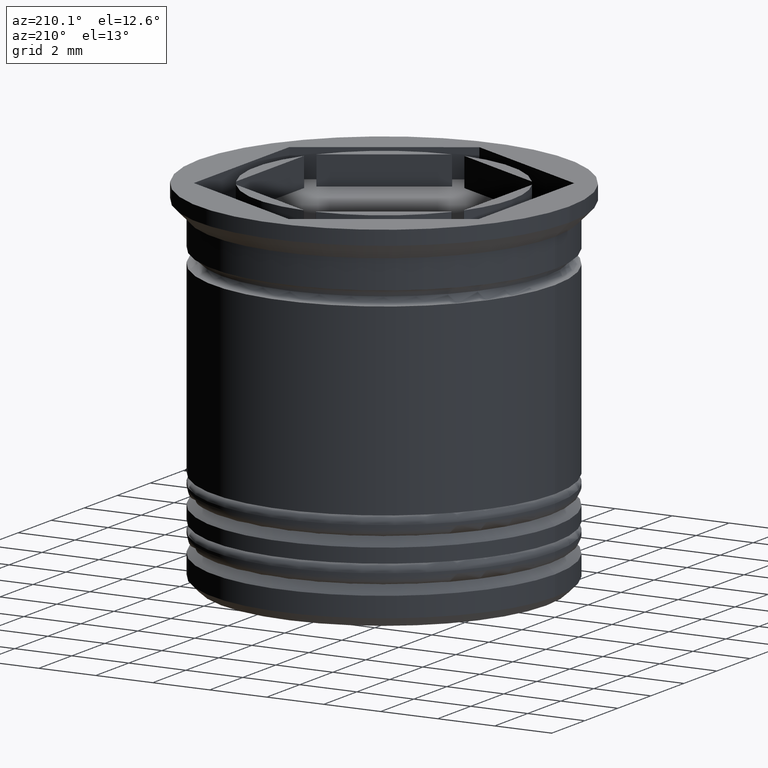
[diagram: clean part render]
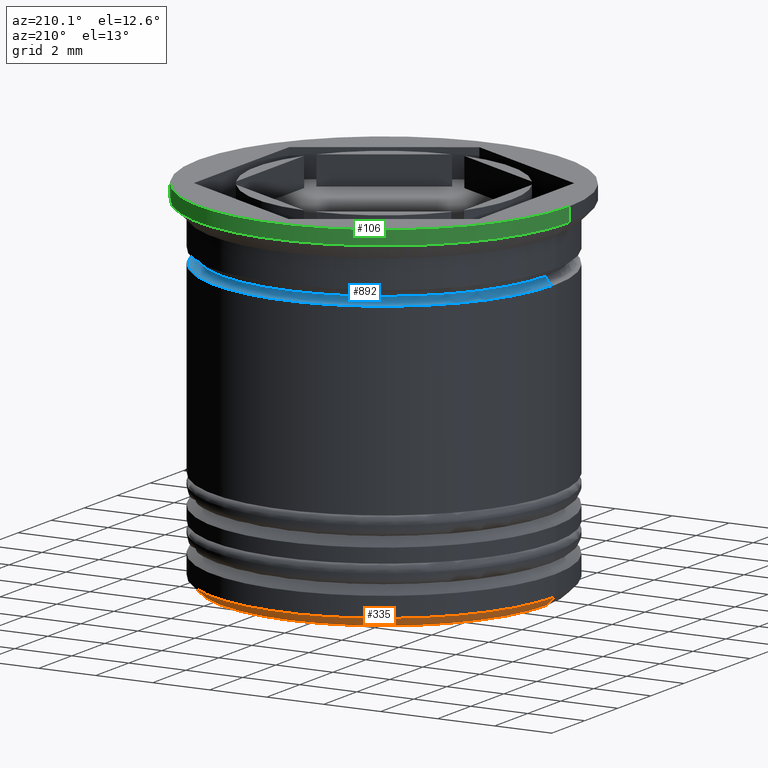
[diagram: same view with three faces highlighted in distinct colors, each labeled with its STEP entity id]
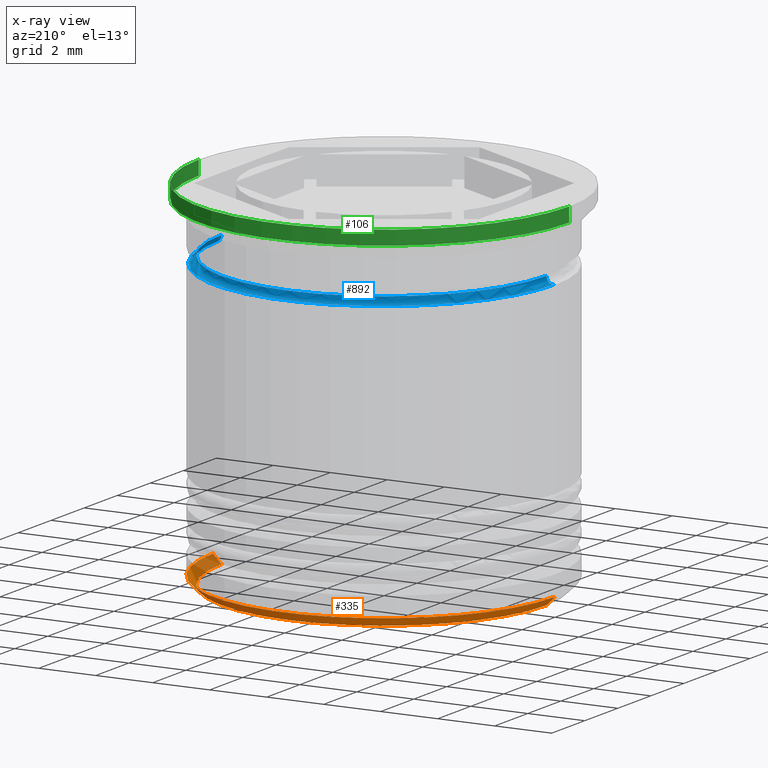
[diagram: x-ray of the same camera — body ghosted, the three highlighted faces saturated]
A machine part, auxiliary view with three faces highlighted in distinct colors.
The next image is the same camera in x-ray (body ghosted, the three faces saturated) — at least one of them is partly hidden behind the body in this view.
Their STEP definitions:

[orange] entity #335 — the highlighted conical surface has half-angle 45 deg.
#52 = ORIENTED_EDGE ( 'NONE', *, *, #1364, .F. ) ;
#88 = CIRCLE ( 'NONE', #1720, 6.000000000000001776 ) ;
#335 = ADVANCED_FACE ( 'NONE', ( #1830 ), #1606, .T. ) ;
#374 = ORIENTED_EDGE ( 'NONE', *, *, #1035, .F. ) ;
#471 = CARTESIAN_POINT ( 'NONE',  ( 0.000000000000000000, 0.000000000000000000, -12.19999999999999574 ) ) ;
#512 = CARTESIAN_POINT ( 'NONE',  ( -6.000000000000001776, 7.347880794884121708E-16, -12.19999999999999574 ) ) ;
#603 = CARTESIAN_POINT ( 'NONE',  ( 6.000000000000001776, 0.000000000000000000, -12.19999999999999574 ) ) ;
#633 = CIRCLE ( 'NONE', #1916, 5.699999999999995737 ) ;
#756 = AXIS2_PLACEMENT_3D ( 'NONE', #471, #1351, #904 ) ;
#774 = LINE ( 'NONE', #1692, #800 ) ;
#781 = VERTEX_POINT ( 'NONE', #1929 ) ;
#800 = VECTOR ( 'NONE', #1858, 999.9999999999998863 ) ;
#806 = CARTESIAN_POINT ( 'NONE',  ( -6.000000000000001776, 7.347880794884120722E-16, -12.19999999999999574 ) ) ;
#824 = CARTESIAN_POINT ( 'NONE',  ( -5.699999999999995737, 7.164183775012013464E-16, -12.50000000000000000 ) ) ;
#904 = DIRECTION ( 'NONE',  ( 1.000000000000000000, 0.000000000000000000, 0.000000000000000000 ) ) ;
#978 = VERTEX_POINT ( 'NONE', #603 ) ;
#1014 = VERTEX_POINT ( 'NONE', #512 ) ;
#1035 = EDGE_CURVE ( 'NONE', #781, #978, #774, .T. ) ;
#1045 = ORIENTED_EDGE ( 'NONE', *, *, #1931, .T. ) ;
#1110 = EDGE_CURVE ( 'NONE', #1183, #781, #633, .T. ) ;
#1158 = CARTESIAN_POINT ( 'NONE',  ( 0.000000000000000000, 0.000000000000000000, -12.19999999999999574 ) ) ;
#1183 = VERTEX_POINT ( 'NONE', #824 ) ;
#1200 = VECTOR ( 'NONE', #1706, 999.9999999999998863 ) ;
#1237 = ORIENTED_EDGE ( 'NONE', *, *, #1110, .F. ) ;
#1318 = DIRECTION ( 'NONE',  ( -1.000000000000000000, 0.000000000000000000, 0.000000000000000000 ) ) ;
#1351 = DIRECTION ( 'NONE',  ( -0.000000000000000000, -0.000000000000000000, 1.000000000000000000 ) ) ;
#1364 = EDGE_CURVE ( 'NONE', #978, #1014, #88, .T. ) ;
#1441 = DIRECTION ( 'NONE',  ( -1.000000000000000000, 0.000000000000000000, 0.000000000000000000 ) ) ;
#1551 = LINE ( 'NONE', #806, #1200 ) ;
#1606 = CONICAL_SURFACE ( 'NONE', #756, 6.000000000000001776, 0.7853981633974497223 ) ;
#1692 = CARTESIAN_POINT ( 'NONE',  ( 6.000000000000001776, 0.000000000000000000, -12.19999999999999574 ) ) ;
#1706 = DIRECTION ( 'NONE',  ( -0.7071067811865486830, 8.659560562354945184E-17, 0.7071067811865464625 ) ) ;
#1720 = AXIS2_PLACEMENT_3D ( 'NONE', #1158, #1771, #1318 ) ;
#1736 = CARTESIAN_POINT ( 'NONE',  ( 0.000000000000000000, 0.000000000000000000, -12.50000000000000000 ) ) ;
#1771 = DIRECTION ( 'NONE',  ( -0.000000000000000000, -0.000000000000000000, 1.000000000000000000 ) ) ;
#1830 = FACE_OUTER_BOUND ( 'NONE', #1837, .T. ) ;
#1837 = EDGE_LOOP ( 'NONE', ( #1237, #1045, #52, #374 ) ) ;
#1858 = DIRECTION ( 'NONE',  ( 0.7071067811865486830, 0.000000000000000000, 0.7071067811865464625 ) ) ;
#1895 = DIRECTION ( 'NONE',  ( 0.000000000000000000, 0.000000000000000000, -1.000000000000000000 ) ) ;
#1916 = AXIS2_PLACEMENT_3D ( 'NONE', #1736, #1895, #1441 ) ;
#1929 = CARTESIAN_POINT ( 'NONE',  ( 5.699999999999995737, 0.000000000000000000, -12.50000000000000000 ) ) ;
#1931 = EDGE_CURVE ( 'NONE', #1183, #1014, #1551, .T. ) ;

[blue] entity #892 — the highlighted toroidal blend (fillet) surface has major radius 5.95 mm and minor (blend) radius 0.25 mm.
#8 = EDGE_CURVE ( 'NONE', #1111, #525, #1784, .T. ) ;
#53 = DIRECTION ( 'NONE',  ( 1.000000000000000000, 0.000000000000000000, 0.000000000000000000 ) ) ;
#57 = CIRCLE ( 'NONE', #321, 5.699999999999999289 ) ;
#58 = CARTESIAN_POINT ( 'NONE',  ( -5.699999999999999289, 6.980486755139912122E-16, -2.250000000000000444 ) ) ;
#67 = CARTESIAN_POINT ( 'NONE',  ( 5.699999999999999289, 0.000000000000000000, -2.250000000000000444 ) ) ;
#77 = CARTESIAN_POINT ( 'NONE',  ( 5.949999999999999289, 0.000000000000000000, -2.250000000000000444 ) ) ;
#92 = FACE_OUTER_BOUND ( 'NONE', #1899, .T. ) ;
#190 = AXIS2_PLACEMENT_3D ( 'NONE', #750, #422, #280 ) ;
#211 = EDGE_CURVE ( 'NONE', #395, #1412, #1068, .T. ) ;
#280 = DIRECTION ( 'NONE',  ( -1.000000000000000000, 0.000000000000000000, 0.000000000000000000 ) ) ;
#321 = AXIS2_PLACEMENT_3D ( 'NONE', #545, #578, #1182 ) ;
#344 = AXIS2_PLACEMENT_3D ( 'NONE', #1498, #1697, #1366 ) ;
#357 = ORIENTED_EDGE ( 'NONE', *, *, #842, .F. ) ;
#363 = ORIENTED_EDGE ( 'NONE', *, *, #211, .F. ) ;
#395 = VERTEX_POINT ( 'NONE', #58 ) ;
#422 = DIRECTION ( 'NONE',  ( 0.000000000000000000, 0.000000000000000000, -1.000000000000000000 ) ) ;
#473 = AXIS2_PLACEMENT_3D ( 'NONE', #77, #528, #1141 ) ;
#525 = VERTEX_POINT ( 'NONE', #1766 ) ;
#528 = DIRECTION ( 'NONE',  ( 0.000000000000000000, -1.000000000000000000, 0.000000000000000000 ) ) ;
#545 = CARTESIAN_POINT ( 'NONE',  ( 0.000000000000000000, 0.000000000000000000, -2.250000000000000444 ) ) ;
#578 = DIRECTION ( 'NONE',  ( -0.000000000000000000, -0.000000000000000000, 1.000000000000000000 ) ) ;
#750 = CARTESIAN_POINT ( 'NONE',  ( 0.000000000000000000, 0.000000000000000000, -2.500000000000000444 ) ) ;
#842 = EDGE_CURVE ( 'NONE', #1111, #395, #57, .T. ) ;
#892 = ADVANCED_FACE ( 'NONE', ( #92 ), #1294, .F. ) ;
#958 = CARTESIAN_POINT ( 'NONE',  ( 0.000000000000000000, 0.000000000000000000, -2.250000000000000444 ) ) ;
#1048 = CIRCLE ( 'NONE', #190, 5.949999999999999289 ) ;
#1068 = CIRCLE ( 'NONE', #344, 0.2500000000000002220 ) ;
#1111 = VERTEX_POINT ( 'NONE', #67 ) ;
#1141 = DIRECTION ( 'NONE',  ( 0.000000000000000000, 0.000000000000000000, -1.000000000000000000 ) ) ;
#1182 = DIRECTION ( 'NONE',  ( 1.000000000000000000, 0.000000000000000000, 0.000000000000000000 ) ) ;
#1234 = EDGE_CURVE ( 'NONE', #1412, #525, #1048, .T. ) ;
#1266 = AXIS2_PLACEMENT_3D ( 'NONE', #958, #1890, #53 ) ;
#1294 = TOROIDAL_SURFACE ( 'NONE', #1266, 5.949999999999999289, 0.2500000000000002220 ) ;
#1366 = DIRECTION ( 'NONE',  ( -1.000000000000000000, 1.224646799147353454E-16, 0.000000000000000000 ) ) ;
#1412 = VERTEX_POINT ( 'NONE', #1813 ) ;
#1498 = CARTESIAN_POINT ( 'NONE',  ( -5.949999999999999289, 7.286648454926750979E-16, -2.250000000000000444 ) ) ;
#1697 = DIRECTION ( 'NONE',  ( 1.224646799147353207E-16, 1.000000000000000000, 0.000000000000000000 ) ) ;
#1731 = ORIENTED_EDGE ( 'NONE', *, *, #1234, .F. ) ;
#1766 = CARTESIAN_POINT ( 'NONE',  ( 5.949999999999999289, 0.000000000000000000, -2.500000000000000444 ) ) ;
#1784 = CIRCLE ( 'NONE', #473, 0.2500000000000002220 ) ;
#1813 = CARTESIAN_POINT ( 'NONE',  ( -5.949999999999999289, 7.286648454926750979E-16, -2.500000000000000444 ) ) ;
#1886 = ORIENTED_EDGE ( 'NONE', *, *, #8, .T. ) ;
#1890 = DIRECTION ( 'NONE',  ( -0.000000000000000000, -0.000000000000000000, 1.000000000000000000 ) ) ;
#1899 = EDGE_LOOP ( 'NONE', ( #357, #1886, #1731, #363 ) ) ;

[green] entity #106 — the highlighted cylindrical surface (partial cylindrical patch) has radius 6.5 mm, axis along (-0, -0, 1).
#106 = ADVANCED_FACE ( 'NONE', ( #1474 ), #1802, .T. ) ;
#129 = EDGE_LOOP ( 'NONE', ( #1777, #716, #1435, #1059 ) ) ;
#283 = VERTEX_POINT ( 'NONE', #1863 ) ;
#309 = CARTESIAN_POINT ( 'NONE',  ( 0.000000000000000000, 0.000000000000000000, -0.4999999999999956701 ) ) ;
#408 = DIRECTION ( 'NONE',  ( -0.000000000000000000, -0.000000000000000000, 1.000000000000000000 ) ) ;
#412 = VERTEX_POINT ( 'NONE', #1004 ) ;
#426 = DIRECTION ( 'NONE',  ( 1.000000000000000000, 0.000000000000000000, 0.000000000000000000 ) ) ;
#451 = VERTEX_POINT ( 'NONE', #1277 ) ;
#592 = DIRECTION ( 'NONE',  ( -0.000000000000000000, -0.000000000000000000, 1.000000000000000000 ) ) ;
#607 = VECTOR ( 'NONE', #408, 1000.000000000000000 ) ;
#620 = DIRECTION ( 'NONE',  ( -1.000000000000000000, 0.000000000000000000, 0.000000000000000000 ) ) ;
#667 = VERTEX_POINT ( 'NONE', #1711 ) ;
#699 = CIRCLE ( 'NONE', #1117, 6.500000000000000000 ) ;
#716 = ORIENTED_EDGE ( 'NONE', *, *, #970, .T. ) ;
#755 = DIRECTION ( 'NONE',  ( -0.000000000000000000, -0.000000000000000000, 1.000000000000000000 ) ) ;
#970 = EDGE_CURVE ( 'NONE', #283, #412, #1661, .T. ) ;
#1004 = CARTESIAN_POINT ( 'NONE',  ( -6.500000000000000000, 7.960204194457795477E-16, 0.000000000000000000 ) ) ;
#1059 = ORIENTED_EDGE ( 'NONE', *, *, #1240, .F. ) ;
#1113 = VECTOR ( 'NONE', #755, 1000.000000000000000 ) ;
#1117 = AXIS2_PLACEMENT_3D ( 'NONE', #309, #592, #620 ) ;
#1216 = AXIS2_PLACEMENT_3D ( 'NONE', #1623, #1811, #426 ) ;
#1240 = EDGE_CURVE ( 'NONE', #667, #451, #1625, .T. ) ;
#1262 = CIRCLE ( 'NONE', #1713, 6.500000000000000000 ) ;
#1277 = CARTESIAN_POINT ( 'NONE',  ( 6.500000000000000000, 0.000000000000000000, 0.000000000000000000 ) ) ;
#1410 = EDGE_CURVE ( 'NONE', #667, #283, #699, .T. ) ;
#1435 = ORIENTED_EDGE ( 'NONE', *, *, #1650, .F. ) ;
#1474 = FACE_OUTER_BOUND ( 'NONE', #129, .T. ) ;
#1500 = CARTESIAN_POINT ( 'NONE',  ( -6.500000000000000000, 7.960204194457795477E-16, 0.000000000000000000 ) ) ;
#1623 = CARTESIAN_POINT ( 'NONE',  ( 0.000000000000000000, 0.000000000000000000, 0.000000000000000000 ) ) ;
#1625 = LINE ( 'NONE', #1774, #607 ) ;
#1643 = CARTESIAN_POINT ( 'NONE',  ( 0.000000000000000000, 0.000000000000000000, 0.000000000000000000 ) ) ;
#1650 = EDGE_CURVE ( 'NONE', #451, #412, #1262, .T. ) ;
#1661 = LINE ( 'NONE', #1500, #1113 ) ;
#1691 = DIRECTION ( 'NONE',  ( 1.000000000000000000, 0.000000000000000000, 0.000000000000000000 ) ) ;
#1711 = CARTESIAN_POINT ( 'NONE',  ( 6.500000000000000000, 0.000000000000000000, -0.4999999999999956701 ) ) ;
#1713 = AXIS2_PLACEMENT_3D ( 'NONE', #1643, #1847, #1691 ) ;
#1774 = CARTESIAN_POINT ( 'NONE',  ( 6.500000000000000000, 0.000000000000000000, 0.000000000000000000 ) ) ;
#1777 = ORIENTED_EDGE ( 'NONE', *, *, #1410, .T. ) ;
#1802 = CYLINDRICAL_SURFACE ( 'NONE', #1216, 6.500000000000000000 ) ;
#1811 = DIRECTION ( 'NONE',  ( -0.000000000000000000, -0.000000000000000000, 1.000000000000000000 ) ) ;
#1847 = DIRECTION ( 'NONE',  ( -0.000000000000000000, -0.000000000000000000, 1.000000000000000000 ) ) ;
#1863 = CARTESIAN_POINT ( 'NONE',  ( -6.500000000000000000, 7.960204194457795477E-16, -0.4999999999999956701 ) ) ;